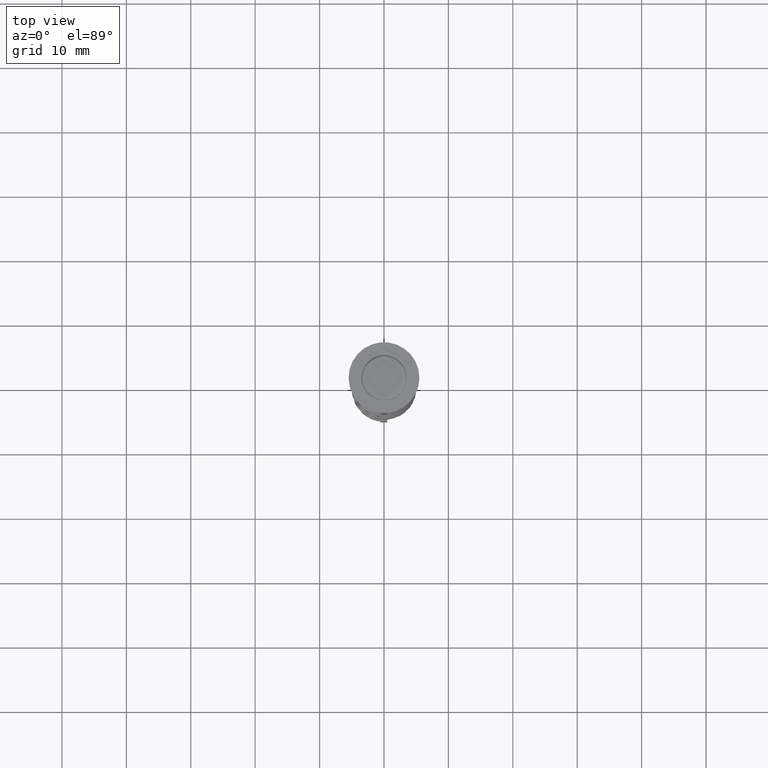
[diagram: clean part render]
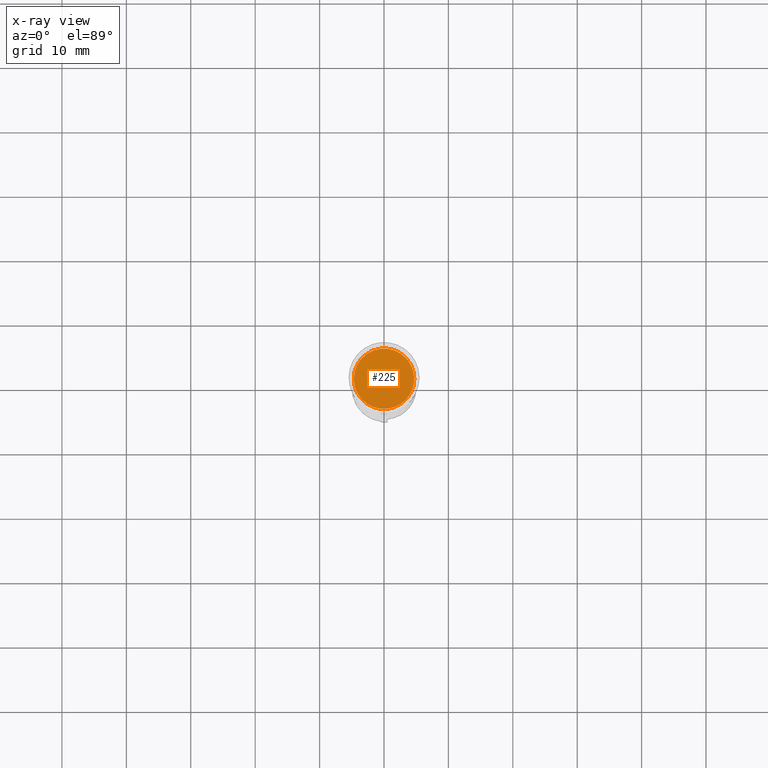
[diagram: x-ray — body ghosted, one internal face saturated and labeled with its STEP entity id]
A machine part, top view, then the same camera in x-ray: the body is ghosted and one INTERNAL B-rep face — a face not visible from any outside direction — is saturated and labeled: STEP entity #225.
In plain terms, the highlighted planar face has unit normal (0, 0, -1).
Its self-contained STEP definition (entity closure, byte-faithful):
#225 = ADVANCED_FACE ( 'NONE', ( #2812 ), #1126, .F. ) ;
#268 = ORIENTED_EDGE ( 'NONE', *, *, #2238, .T. ) ;
#348 = VERTEX_POINT ( 'NONE', #1217 ) ;
#353 = CARTESIAN_POINT ( 'NONE',  ( -4.700000000000001066, 0.000000000000000000, -10.50000000000000178 ) ) ;
#490 = AXIS2_PLACEMENT_3D ( 'NONE', #2104, #1239, #1804 ) ;
#771 = DIRECTION ( 'NONE',  ( 0.000000000000000000, 0.000000000000000000, -1.000000000000000000 ) ) ;
#913 = AXIS2_PLACEMENT_3D ( 'NONE', #3234, #994, #2379 ) ;
#994 = DIRECTION ( 'NONE',  ( -0.000000000000000000, -0.000000000000000000, 1.000000000000000000 ) ) ;
#1081 = AXIS2_PLACEMENT_3D ( 'NONE', #3673, #771, #3387 ) ;
#1126 = PLANE ( 'NONE',  #1081 ) ;
#1213 = ORIENTED_EDGE ( 'NONE', *, *, #1644, .T. ) ;
#1217 = CARTESIAN_POINT ( 'NONE',  ( 4.700000000000001066, 5.939536975864663955E-16, -10.50000000000000178 ) ) ;
#1239 = DIRECTION ( 'NONE',  ( -0.000000000000000000, -0.000000000000000000, 1.000000000000000000 ) ) ;
#1644 = EDGE_CURVE ( 'NONE', #348, #1718, #2117, .T. ) ;
#1718 = VERTEX_POINT ( 'NONE', #353 ) ;
#1804 = DIRECTION ( 'NONE',  ( -1.000000000000000000, 0.000000000000000000, 0.000000000000000000 ) ) ;
#2104 = CARTESIAN_POINT ( 'NONE',  ( 0.000000000000000000, 0.000000000000000000, -10.50000000000000178 ) ) ;
#2117 = CIRCLE ( 'NONE', #490, 4.700000000000001066 ) ;
#2238 = EDGE_CURVE ( 'NONE', #1718, #348, #2532, .T. ) ;
#2379 = DIRECTION ( 'NONE',  ( -1.000000000000000000, 0.000000000000000000, 0.000000000000000000 ) ) ;
#2532 = CIRCLE ( 'NONE', #913, 4.700000000000001066 ) ;
#2812 = FACE_OUTER_BOUND ( 'NONE', #3508, .T. ) ;
#3234 = CARTESIAN_POINT ( 'NONE',  ( 0.000000000000000000, 0.000000000000000000, -10.50000000000000178 ) ) ;
#3387 = DIRECTION ( 'NONE',  ( -1.000000000000000000, 0.000000000000000000, -0.000000000000000000 ) ) ;
#3508 = EDGE_LOOP ( 'NONE', ( #268, #1213 ) ) ;
#3673 = CARTESIAN_POINT ( 'NONE',  ( 0.000000000000000000, 0.000000000000000000, -10.50000000000000178 ) ) ;